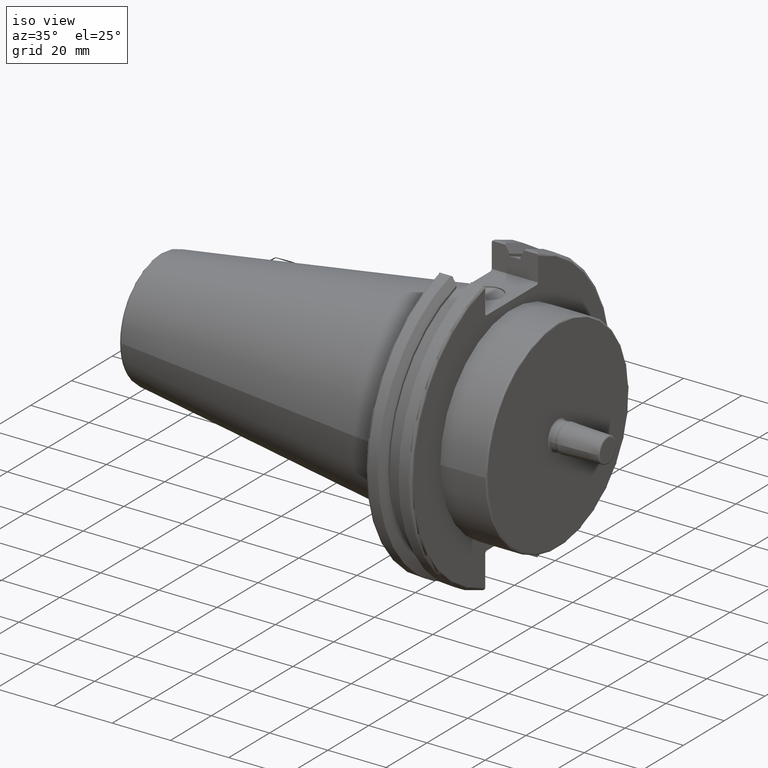
[diagram: clean part render]
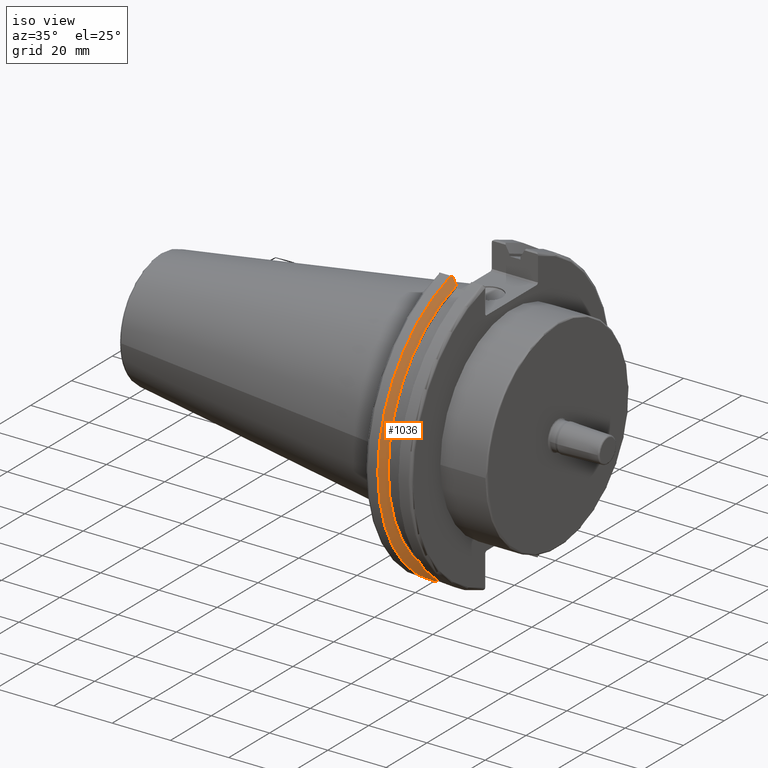
[diagram: same view with one face highlighted and labeled with its STEP entity id]
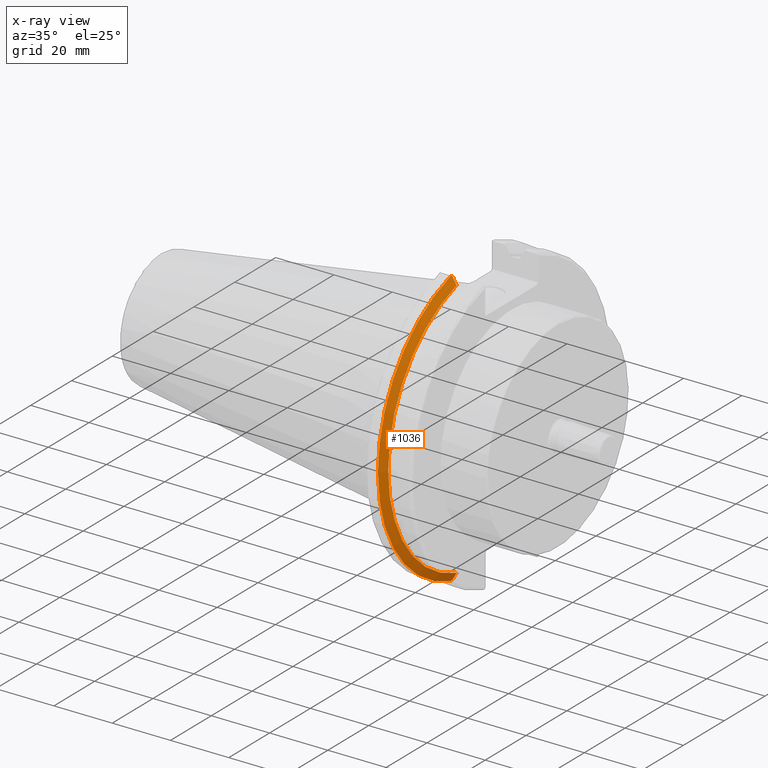
[diagram: x-ray of the same camera — body ghosted, the highlighted face saturated]
A machine part, iso view. The second image highlights one B-rep face of the part: STEP entity #1036.
The next image is the same camera in x-ray: the body ghosted, the highlighted face saturated — about 0% of this face is hidden behind the body in this view.
In plain terms, the highlighted conical surface has half-angle 60 deg.
Its self-contained STEP definition (entity closure, byte-faithful):
#18=(
BOUNDED_CURVE()
B_SPLINE_CURVE(2,(#1703,#1704,#1705),.UNSPECIFIED.,.F.,.F.)
B_SPLINE_CURVE_WITH_KNOTS((3,3),(0.,0.275823910675363),.UNSPECIFIED.)
CURVE()
GEOMETRIC_REPRESENTATION_ITEM()
RATIONAL_B_SPLINE_CURVE((1.,1.00038235575411,1.00012873637099))
REPRESENTATION_ITEM('')
);
#21=(
BOUNDED_CURVE()
B_SPLINE_CURVE(2,(#1731,#1732,#1733),.UNSPECIFIED.,.F.,.F.)
B_SPLINE_CURVE_WITH_KNOTS((3,3),(0.0558332664508432,0.331657177124506),
 .UNSPECIFIED.)
CURVE()
GEOMETRIC_REPRESENTATION_ITEM()
RATIONAL_B_SPLINE_CURVE((1.00012873636717,1.00038235574275,1.))
REPRESENTATION_ITEM('')
);
#22=(
BOUNDED_CURVE()
B_SPLINE_CURVE(2,(#1766,#1767,#1768),.UNSPECIFIED.,.F.,.F.)
B_SPLINE_CURVE_WITH_KNOTS((3,3),(0.,0.0648240472897574),.UNSPECIFIED.)
CURVE()
GEOMETRIC_REPRESENTATION_ITEM()
RATIONAL_B_SPLINE_CURVE((1.,1.00011477674865,1.00019140645997))
REPRESENTATION_ITEM('')
);
#23=(
BOUNDED_CURVE()
B_SPLINE_CURVE(2,(#1774,#1775,#1776),.UNSPECIFIED.,.F.,.F.)
B_SPLINE_CURVE_WITH_KNOTS((3,3),(0.325260944932423,0.3900849922222),
 .UNSPECIFIED.)
CURVE()
GEOMETRIC_REPRESENTATION_ITEM()
RATIONAL_B_SPLINE_CURVE((1.00019140645937,1.00011477674829,1.))
REPRESENTATION_ITEM('')
);
#54=CONICAL_SURFACE('',#1163,47.8172386482472,1.0471975511966);
#148=FACE_OUTER_BOUND('',#212,.T.);
#212=EDGE_LOOP('',(#922,#923,#924,#925,#926,#927));
#394=CIRCLE('',#1125,49.2125);
#409=CIRCLE('',#1164,46.4219772964944);
#477=VERTEX_POINT('',#1700);
#478=VERTEX_POINT('',#1702);
#487=VERTEX_POINT('',#1728);
#488=VERTEX_POINT('',#1730);
#492=VERTEX_POINT('',#1764);
#493=VERTEX_POINT('',#1770);
#595=EDGE_CURVE('',#478,#477,#18,.T.);
#606=EDGE_CURVE('',#488,#487,#21,.T.);
#614=EDGE_CURVE('',#492,#477,#22,.T.);
#616=EDGE_CURVE('',#492,#493,#394,.T.);
#617=EDGE_CURVE('',#488,#493,#23,.T.);
#660=EDGE_CURVE('',#478,#487,#409,.T.);
#922=ORIENTED_EDGE('',*,*,#617,.F.);
#923=ORIENTED_EDGE('',*,*,#606,.T.);
#924=ORIENTED_EDGE('',*,*,#660,.F.);
#925=ORIENTED_EDGE('',*,*,#595,.T.);
#926=ORIENTED_EDGE('',*,*,#614,.F.);
#927=ORIENTED_EDGE('',*,*,#616,.T.);
#1036=ADVANCED_FACE('',(#148),#54,.T.);
#1125=AXIS2_PLACEMENT_3D('',#1772,#1340,#1341);
#1163=AXIS2_PLACEMENT_3D('',#1896,#1434,#1435);
#1164=AXIS2_PLACEMENT_3D('',#1897,#1436,#1437);
#1340=DIRECTION('center_axis',(1.,0.,0.));
#1341=DIRECTION('ref_axis',(0.,0.,-1.));
#1434=DIRECTION('center_axis',(-1.,0.,0.));
#1435=DIRECTION('ref_axis',(0.,-1.,-1.22464679914735E-16));
#1436=DIRECTION('center_axis',(1.,0.,0.));
#1437=DIRECTION('ref_axis',(0.,0.,-1.));
#1700=CARTESIAN_POINT('',(7.87958960562425,-12.95,46.9780755322918));
#1702=CARTESIAN_POINT('',(9.2123,-12.95,44.5791147973604));
#1703=CARTESIAN_POINT('Ctrl Pts',(9.2123,-12.95,44.5791147973604));
#1704=CARTESIAN_POINT('Ctrl Pts',(8.56340449055559,-12.95,45.7494966802201));
#1705=CARTESIAN_POINT('Ctrl Pts',(7.87958960562425,-12.95,46.9780755322918));
#1728=CARTESIAN_POINT('',(9.2123,-12.95,-44.5791147973604));
#1730=CARTESIAN_POINT('',(7.87958960562425,-12.95,-46.9780755322918));
#1731=CARTESIAN_POINT('Ctrl Pts',(7.87958960562425,-12.95,-46.9780755322918));
#1732=CARTESIAN_POINT('Ctrl Pts',(8.56340449054235,-12.95,-45.7494966802439));
#1733=CARTESIAN_POINT('Ctrl Pts',(9.2123,-12.95,-44.5791147973604));
#1764=CARTESIAN_POINT('',(7.60119096595128,-13.4317035994433,47.3440544806494));
#1766=CARTESIAN_POINT('Ctrl Pts',(7.60119096595127,-13.4317035994433,47.3440544806494));
#1767=CARTESIAN_POINT('Ctrl Pts',(7.74146896663823,-13.1896660169965,47.1601640966264));
#1768=CARTESIAN_POINT('Ctrl Pts',(7.87958960562425,-12.95,46.9780755322918));
#1770=CARTESIAN_POINT('',(7.60119096595128,-13.4317035994433,-47.3440544806494));
#1772=CARTESIAN_POINT('Origin',(7.60119096595128,0.,0.));
#1774=CARTESIAN_POINT('Ctrl Pts',(7.87958960562425,-12.95,-46.9780755322918));
#1775=CARTESIAN_POINT('Ctrl Pts',(7.74146896663818,-13.1896660169967,-47.1601640966265));
#1776=CARTESIAN_POINT('Ctrl Pts',(7.60119096595127,-13.4317035994433,-47.3440544806494));
#1896=CARTESIAN_POINT('Origin',(8.40674548297564,0.,0.));
#1897=CARTESIAN_POINT('Origin',(9.2123,0.,0.));